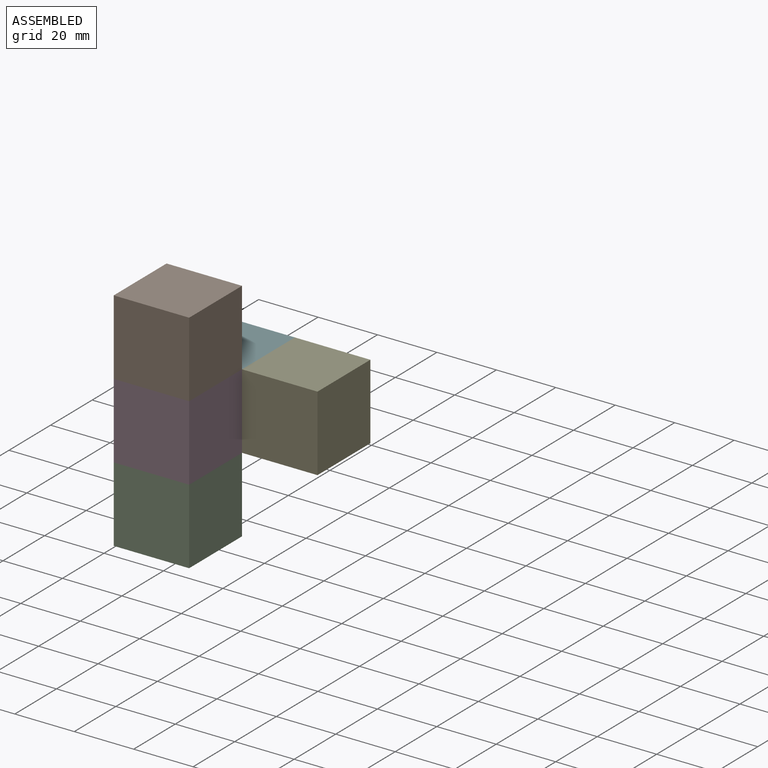
[diagram: assembled view]
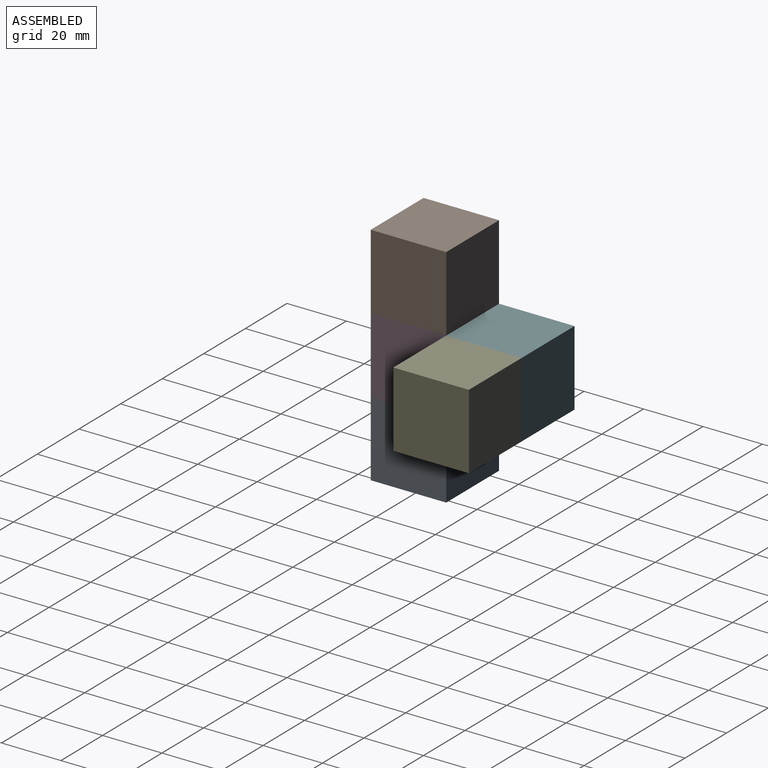
[diagram: assembled view, second angle]
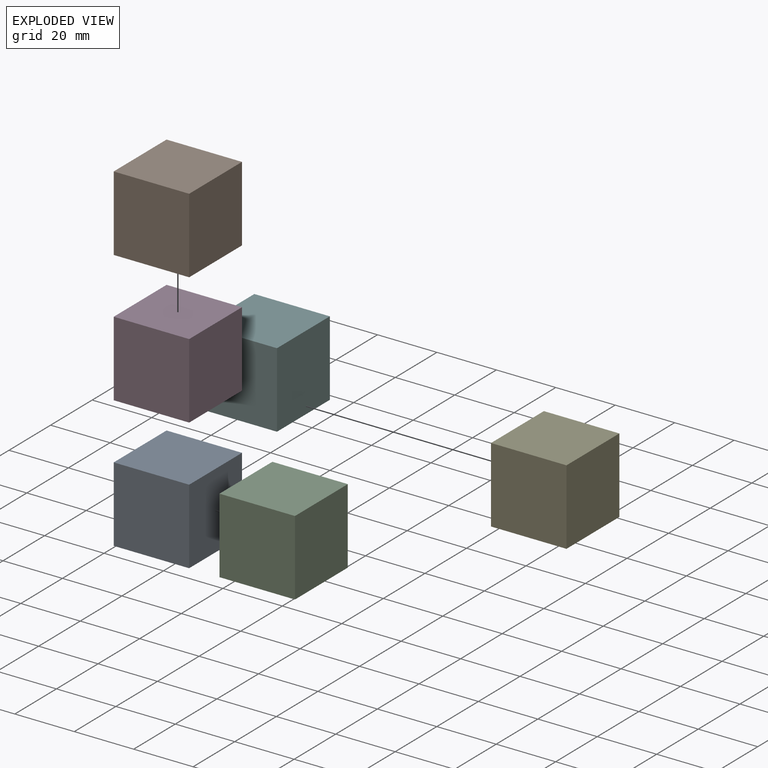
[diagram: exploded view]
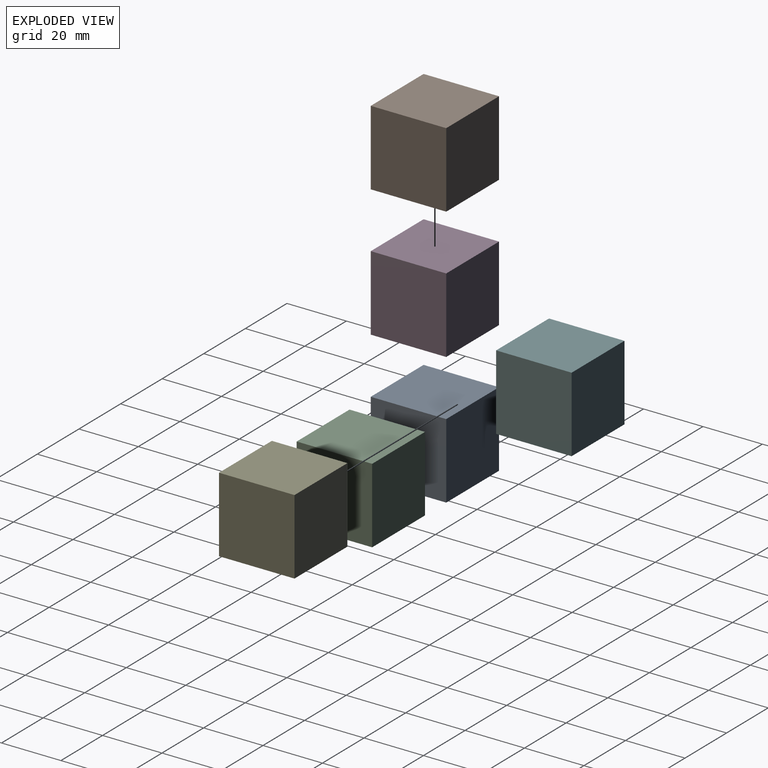
[diagram: exploded view, second angle]
ASSEMBLY  parts=6 mates=4
PART A: 6 faces, bbox 25.4x25.4x25.4 mm
  f0: plane 25.4x25.4mm, normal (-1,0,0), area 645.2mm2, adj f1,f3,f4,f5
  f1: plane 25.4x25.4mm, normal (0,0,-1), area 645.2mm2, adj f0,f2,f4,f5
  f2: plane 25.4x25.4mm, normal (1,0,0), area 645.2mm2, adj f1,f3,f4,f5
  f3: plane 25.4x25.4mm, normal (0,0,1), area 645.2mm2, adj f0,f2,f4,f5
  f4: plane 25.4x25.4mm, normal (0,-1,0), area 645.2mm2, adj f0,f1,f2,f3
  f5: plane 25.4x25.4mm, normal (0,1,0), area 645.2mm2, adj f0,f1,f2,f3
PART B: same geometry as A
PART C: same geometry as A
PART D: same geometry as A
PART E: same geometry as A
PART F: same geometry as A
PLACE A t=(-32.18,-1.11,-16.54)mm
PLACE B rot(axis=(1,0,0),180deg) t=(-32.18,-26.51,59.66)mm
PLACE C t=(-32.18,-1.11,-16.54)mm
PLACE D rot(axis=(1,0,0),90deg) t=(-32.18,-1.11,34.26)mm
PLACE E rot(axis=(0,-1,0),180deg) t=(18.62,24.29,34.26)mm
PLACE F rot(axis=(1,0,0),180deg) t=(-32.18,-1.11,34.26)mm
MATE fastened D.f4 <-> A.f3  axis (0,0,-1) through (-19.48,-13.81,8.86)mm
MATE fastened B.f3 <-> D.f5  axis (0,0,-1) through (-19.48,-13.81,34.26)mm
MATE fastened E.f2 <-> F.f2  axis (-1,0,0) through (-6.78,11.59,21.56)mm
MATE fastened F.f5 <-> D.f1  axis (0,-1,0) through (-19.48,-1.11,21.56)mm
